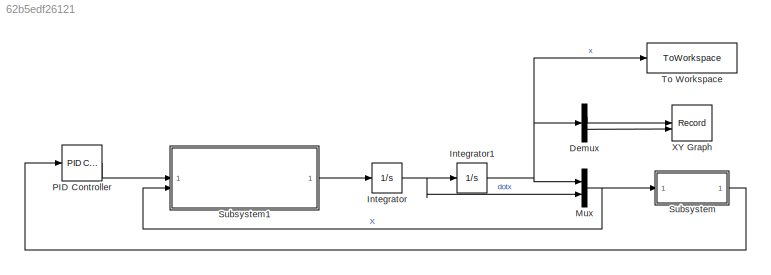
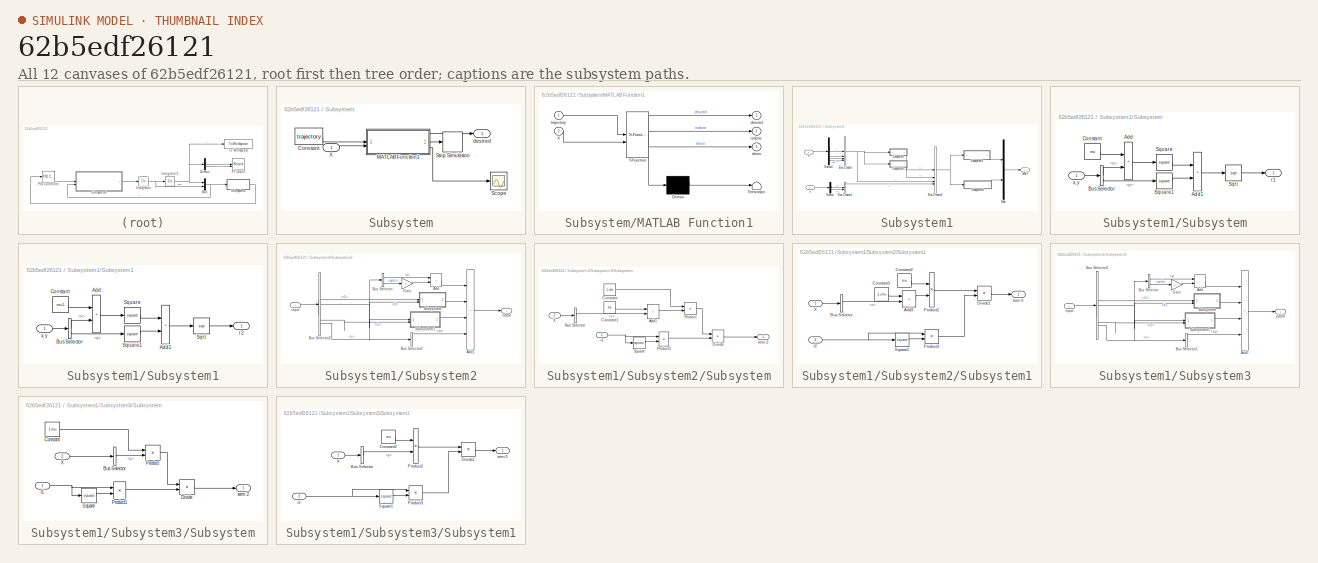
[diagram: thumbnail index - all 12 canvases of the model, root first then tree order]
MODEL slx_62b5edf26121
KIND model
CONFIG AbsTol = auto
CONFIG EnableMultiTasking = off
CONFIG FixedStep = 0.001
CONFIG MaxStep = auto
CONFIG MinStep = auto
CONFIG RelTol = 1e-3
CONFIG SampleTimeConstraint = Unconstrained
CONFIG SolverName = ode4
CONFIG StartTime = 0.0
CONFIG StopTime = 20
BLOCK [Demux] Demux
  Outputs = 2
BLOCK [Integrator] Integrator
  InitialCondition = dot_X0
BLOCK [Integrator] Integrator1
  InitialCondition = X0
BLOCK [Mux] Mux
  DisplayOption = bar
  Inputs = 2
BLOCK [Reference] PID Controller  REF=slpidlib/PID Controller
  LibrarySourceBlock = simulink/Continuous/PID Controller
  SourceBlock = slpidlib/PID Controller
  SourceType = PID 1dof
BLOCK [SubSystem] Subsystem
BLOCK [Constant] Subsystem/Constant
  Value = trajectory
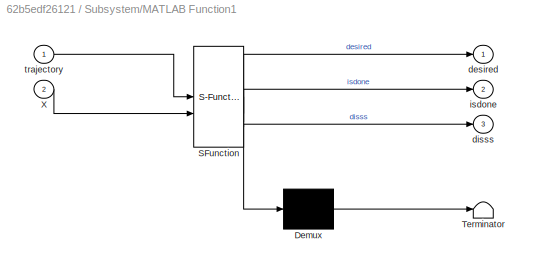
BLOCK [SubSystem] Subsystem/MATLAB Function1
  ErrorFcn = Stateflow.Translate.translate
  LibrarySourceBlock = simulink/User-Defined\nFunctions/MATLAB Function
  PermitHierarchicalResolution = ExplicitOnly
  SFBlockType = MATLAB Function
  TreatAsAtomicUnit = on
BLOCK [Demux] Subsystem/MATLAB Function1/ Demux 
  Outputs = 1
BLOCK [S-Function] Subsystem/MATLAB Function1/ SFunction 
  EnableBusSupport = on
  FunctionName = sf_sfun
  PortCounts = [2 4]
  SFcnIsStateOwnerBlock = off
  SFunctionDeploymentMode = off
  Tag = Stateflow S-Function 1
BLOCK [Terminator] Subsystem/MATLAB Function1/ Terminator 
BLOCK [Inport] Subsystem/MATLAB Function1/X
  Port = 2
BLOCK [Outport] Subsystem/MATLAB Function1/desired
BLOCK [Outport] Subsystem/MATLAB Function1/disss
  Port = 3
BLOCK [Outport] Subsystem/MATLAB Function1/isdone
  Port = 2
BLOCK [Inport] Subsystem/MATLAB Function1/trajectory
BLOCK [Scope] Subsystem/Scope
  Floating = off
  NumInputPorts = 1
  ScopeSpecificationString = Simulink.scopes.TimeScopeBlockCfg('CurrentConfiguration', extmgr.ConfigurationSet(extmgr.Configuration('Core','General UI',true),extmgr.Configuration('Core','Source UI',true),extmgr.Configuration('Sources','WiredSimulink',true),extmgr.Configuration('Visuals','Time Domain',true,'SerializedDisplays',{struct('MinYLimReal','0.00298','MaxYLimReal','0.00735','YLabelReal','','MinYLimMag','0.00298','MaxYL...<+1359ch>
BLOCK [Stop] Subsystem/Stop Simulation
BLOCK [Inport] Subsystem/X
BLOCK [Outport] Subsystem/desired
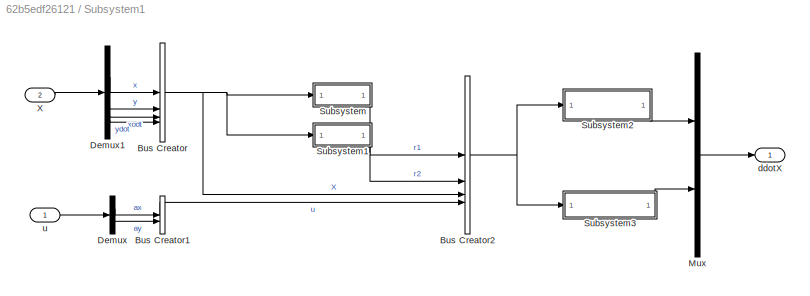
BLOCK [SubSystem] Subsystem1
BLOCK [BusCreator] Subsystem1/Bus Creator
  DisplayOption = bar
  InheritFromInputs = on
  Inputs = 4
BLOCK [BusCreator] Subsystem1/Bus Creator1
  DisplayOption = bar
  InheritFromInputs = on
  Inputs = 2
BLOCK [BusCreator] Subsystem1/Bus Creator2
  DisplayOption = bar
  InheritFromInputs = on
  Inputs = 4
BLOCK [Demux] Subsystem1/Demux
  Outputs = 2
BLOCK [Demux] Subsystem1/Demux1
BLOCK [Mux] Subsystem1/Mux
  DisplayOption = bar
  Inputs = 2
BLOCK [SubSystem] Subsystem1/Subsystem
BLOCK [Sum] Subsystem1/Subsystem/Add
  IconShape = rectangular
BLOCK [Sum] Subsystem1/Subsystem/Add1
  IconShape = rectangular
BLOCK [BusSelector] Subsystem1/Subsystem/Bus Selector
  OutputSignals = x,y
BLOCK [Constant] Subsystem1/Subsystem/Constant
  Value = mu
BLOCK [Sqrt] Subsystem1/Subsystem/Sqrt
BLOCK [Math] Subsystem1/Subsystem/Square
  Operator = square
BLOCK [Math] Subsystem1/Subsystem/Square1
  Operator = square
BLOCK [Outport] Subsystem1/Subsystem/r1
BLOCK [Inport] Subsystem1/Subsystem/x, y
BLOCK [SubSystem] Subsystem1/Subsystem1
BLOCK [Sum] Subsystem1/Subsystem1/Add
  IconShape = rectangular
BLOCK [Sum] Subsystem1/Subsystem1/Add1
  IconShape = rectangular
BLOCK [BusSelector] Subsystem1/Subsystem1/Bus Selector
  OutputSignals = x,y
BLOCK [Constant] Subsystem1/Subsystem1/Constant
  Value = mu-1
BLOCK [Sqrt] Subsystem1/Subsystem1/Sqrt
BLOCK [Math] Subsystem1/Subsystem1/Square
  Operator = square
BLOCK [Math] Subsystem1/Subsystem1/Square1
  Operator = square
BLOCK [Outport] Subsystem1/Subsystem1/r2
BLOCK [Inport] Subsystem1/Subsystem1/x, y
BLOCK [SubSystem] Subsystem1/Subsystem2
BLOCK [Sum] Subsystem1/Subsystem2/Add
  IconShape = rectangular
BLOCK [Sum] Subsystem1/Subsystem2/Add1
  IconShape = rectangular
  Inputs = +--+
BLOCK [BusSelector] Subsystem1/Subsystem2/Bus Selector
  OutputSignals = x,ydot
BLOCK [BusSelector] Subsystem1/Subsystem2/Bus Selector1
  OutputSignals = ax
BLOCK [BusSelector] Subsystem1/Subsystem2/Bus Selector2
  OutputSignals = X,r1,r2,u
BLOCK [Gain] Subsystem1/Subsystem2/Gain
  Gain = 2
BLOCK [SubSystem] Subsystem1/Subsystem2/Subsystem
BLOCK [Sum] Subsystem1/Subsystem2/Subsystem/Add1
  IconShape = rectangular
BLOCK [BusSelector] Subsystem1/Subsystem2/Subsystem/Bus Selector
  OutputSignals = x
BLOCK [Constant] Subsystem1/Subsystem2/Subsystem/Constant
  Value = 1-mu
BLOCK [Constant] Subsystem1/Subsystem2/Subsystem/Constant1
  Value = mu
BLOCK [Product] Subsystem1/Subsystem2/Subsystem/Divide
  Inputs = */
BLOCK [Product] Subsystem1/Subsystem2/Subsystem/Product
BLOCK [Product] Subsystem1/Subsystem2/Subsystem/Product1
BLOCK [Math] Subsystem1/Subsystem2/Subsystem/Square
  Operator = square
BLOCK [Inport] Subsystem1/Subsystem2/Subsystem/X
  Port = 2
BLOCK [Inport] Subsystem1/Subsystem2/Subsystem/r1
BLOCK [Outport] Subsystem1/Subsystem2/Subsystem/term 2
BLOCK [SubSystem] Subsystem1/Subsystem2/Subsystem1
BLOCK [Sum] Subsystem1/Subsystem2/Subsystem1/Add3
  IconShape = rectangular
BLOCK [BusSelector] Subsystem1/Subsystem2/Subsystem1/Bus Selector
  OutputSignals = x
BLOCK [Constant] Subsystem1/Subsystem2/Subsystem1/Constant2
  Value = mu
BLOCK [Constant] Subsystem1/Subsystem2/Subsystem1/Constant3
  Value = -1+mu
BLOCK [Product] Subsystem1/Subsystem2/Subsystem1/Divide1
  Inputs = */
BLOCK [Product] Subsystem1/Subsystem2/Subsystem1/Product2
BLOCK [Product] Subsystem1/Subsystem2/Subsystem1/Product3
BLOCK [Math] Subsystem1/Subsystem2/Subsystem1/Square1
  Operator = square
BLOCK [Inport] Subsystem1/Subsystem2/Subsystem1/X
BLOCK [Inport] Subsystem1/Subsystem2/Subsystem1/r2
  Port = 2
BLOCK [Outport] Subsystem1/Subsystem2/Subsystem1/term 3
BLOCK [Inport] Subsystem1/Subsystem2/input
BLOCK [Outport] Subsystem1/Subsystem2/xddot
BLOCK [SubSystem] Subsystem1/Subsystem3
BLOCK [Sum] Subsystem1/Subsystem3/Add
  IconShape = rectangular
BLOCK [Sum] Subsystem1/Subsystem3/Add1
  IconShape = rectangular
  Inputs = +--+
BLOCK [BusSelector] Subsystem1/Subsystem3/Bus Selector
  OutputSignals = y,xodt
BLOCK [BusSelector] Subsystem1/Subsystem3/Bus Selector1
  OutputSignals = ay
BLOCK [BusSelector] Subsystem1/Subsystem3/Bus Selector2
  OutputSignals = X,r1,r2,u
BLOCK [Gain] Subsystem1/Subsystem3/Gain
  Gain = -2
BLOCK [SubSystem] Subsystem1/Subsystem3/Subsystem
BLOCK [BusSelector] Subsystem1/Subsystem3/Subsystem/Bus Selector
  OutputSignals = y
BLOCK [Constant] Subsystem1/Subsystem3/Subsystem/Constant
  Value = 1-mu
BLOCK [Product] Subsystem1/Subsystem3/Subsystem/Divide
  Inputs = */
BLOCK [Product] Subsystem1/Subsystem3/Subsystem/Product
BLOCK [Product] Subsystem1/Subsystem3/Subsystem/Product1
BLOCK [Math] Subsystem1/Subsystem3/Subsystem/Square
  Operator = square
BLOCK [Inport] Subsystem1/Subsystem3/Subsystem/X
  Port = 2
BLOCK [Inport] Subsystem1/Subsystem3/Subsystem/r1
BLOCK [Outport] Subsystem1/Subsystem3/Subsystem/term 2
BLOCK [SubSystem] Subsystem1/Subsystem3/Subsystem1
BLOCK [BusSelector] Subsystem1/Subsystem3/Subsystem1/Bus Selector
  OutputSignals = y
BLOCK [Constant] Subsystem1/Subsystem3/Subsystem1/Constant2
  Value = mu
BLOCK [Product] Subsystem1/Subsystem3/Subsystem1/Divide1
  Inputs = */
BLOCK [Product] Subsystem1/Subsystem3/Subsystem1/Product2
BLOCK [Product] Subsystem1/Subsystem3/Subsystem1/Product3
BLOCK [Math] Subsystem1/Subsystem3/Subsystem1/Square1
  Operator = square
BLOCK [Inport] Subsystem1/Subsystem3/Subsystem1/X
BLOCK [Inport] Subsystem1/Subsystem3/Subsystem1/r2
  Port = 2
BLOCK [Outport] Subsystem1/Subsystem3/Subsystem1/term 3
BLOCK [Inport] Subsystem1/Subsystem3/input
BLOCK [Outport] Subsystem1/Subsystem3/yddot
BLOCK [Inport] Subsystem1/X
  Port = 2
BLOCK [Outport] Subsystem1/ddotX
BLOCK [Inport] Subsystem1/u
BLOCK [ToWorkspace] To Workspace
  FixptAsFi = on
  MaxDataPoints = inf
  SampleTime = -1
  Save2DSignal = 2-D array (concatenate along first dimension)
  VariableName = simout
BLOCK [Record] XY Graph
  CompatibilityTag = XY
  FileSettingsInternal = {"entries":[{"content":{"excelSettings":{"content":{},"type":"Streamout.ExcelSettings"}},"type":"Streamout.FileSettingStorage","uuid":""}],"packageUris":["http:\/\/schema.mathworks.com\/mf0\/streamout_blocks\/R2020a"],"version":"1.0"}
  Layout = [1 1]
  SignalsInternal = {"entries":[{"content":{"signals":[{"content":{"blockPath":[],"dimensions":[1],"domain":"","lineColor":"#a2142f","plots":[1],"port":1,"sid":[""],"signalID":10867,"signalName":"Demux:1"},"type":"RecordBlkView.Signal","uuid":""},{"content":{"blockPath":[],"dimensions":[1],"domain":"","lineColor":"#139fff","plots":[1],"port":2,"sid":[""],"signalID":10871,"signalName":"Demux:2"},"type":"RecordBlkView....<+164ch>
  VisualizationBindings = {"xyplotplugin":{"info":[{"series":[{"bindingParametersList":[{"parameter":"X-Axis","signalID":10867,"signalName":"Demux:1"},{"parameter":"Y-Axis","signalID":10871,"signalName":"Demux:2"}],"seriesID":19812}],"subplotID":1}]}}
LINE Demux:1 -> XY Graph:1
LINE Demux:2 -> XY Graph:2
NET Integrator1:1 -> Demux:1, Mux:1, To Workspace:1
NET Integrator:1 -> Integrator1:1, Mux:2
NET Mux:1 -> Subsystem1:2, Subsystem:1
LINE PID Controller:1 -> Subsystem1:1
LINE Subsystem/Constant:1 -> Subsystem/MATLAB Function1:1
LINE Subsystem/MATLAB Function1:1 -> Subsystem/desired:1
LINE Subsystem/MATLAB Function1:2 -> Subsystem/Stop Simulation:1
LINE Subsystem/MATLAB Function1:3 -> Subsystem/Scope:1
LINE Subsystem/X:1 -> Subsystem/MATLAB Function1:2
LINE Subsystem1/Bus Creator1:1 -> Subsystem1/Bus Creator2:4
NET Subsystem1/Bus Creator2:1 -> Subsystem1/Subsystem2:1, Subsystem1/Subsystem3:1
NET Subsystem1/Bus Creator:1 -> Subsystem1/Bus Creator2:3, Subsystem1/Subsystem1:1, Subsystem1/Subsystem:1
LINE Subsystem1/Demux1:1 -> Subsystem1/Bus Creator:1
LINE Subsystem1/Demux1:2 -> Subsystem1/Bus Creator:2
LINE Subsystem1/Demux1:3 -> Subsystem1/Bus Creator:3
LINE Subsystem1/Demux1:4 -> Subsystem1/Bus Creator:4
LINE Subsystem1/Demux:1 -> Subsystem1/Bus Creator1:1
LINE Subsystem1/Demux:2 -> Subsystem1/Bus Creator1:2
LINE Subsystem1/Mux:1 -> Subsystem1/ddotX:1
LINE Subsystem1/Subsystem/Add1:1 -> Subsystem1/Subsystem/Sqrt:1
LINE Subsystem1/Subsystem/Add:1 -> Subsystem1/Subsystem/Square:1
LINE Subsystem1/Subsystem/Bus Selector:1 -> Subsystem1/Subsystem/Add:2
LINE Subsystem1/Subsystem/Bus Selector:2 -> Subsystem1/Subsystem/Square1:1
LINE Subsystem1/Subsystem/Constant:1 -> Subsystem1/Subsystem/Add:1
LINE Subsystem1/Subsystem/Sqrt:1 -> Subsystem1/Subsystem/r1:1
LINE Subsystem1/Subsystem/Square1:1 -> Subsystem1/Subsystem/Add1:2
LINE Subsystem1/Subsystem/Square:1 -> Subsystem1/Subsystem/Add1:1
LINE Subsystem1/Subsystem/x, y:1 -> Subsystem1/Subsystem/Bus Selector:1
LINE Subsystem1/Subsystem1/Add1:1 -> Subsystem1/Subsystem1/Sqrt:1
LINE Subsystem1/Subsystem1/Add:1 -> Subsystem1/Subsystem1/Square:1
LINE Subsystem1/Subsystem1/Bus Selector:1 -> Subsystem1/Subsystem1/Add:2
LINE Subsystem1/Subsystem1/Bus Selector:2 -> Subsystem1/Subsystem1/Square1:1
LINE Subsystem1/Subsystem1/Constant:1 -> Subsystem1/Subsystem1/Add:1
LINE Subsystem1/Subsystem1/Sqrt:1 -> Subsystem1/Subsystem1/r2:1
LINE Subsystem1/Subsystem1/Square1:1 -> Subsystem1/Subsystem1/Add1:2
LINE Subsystem1/Subsystem1/Square:1 -> Subsystem1/Subsystem1/Add1:1
LINE Subsystem1/Subsystem1/x, y:1 -> Subsystem1/Subsystem1/Bus Selector:1
LINE Subsystem1/Subsystem1:1 -> Subsystem1/Bus Creator2:2
LINE Subsystem1/Subsystem2/Add1:1 -> Subsystem1/Subsystem2/xddot:1
LINE Subsystem1/Subsystem2/Add:1 -> Subsystem1/Subsystem2/Add1:1
LINE Subsystem1/Subsystem2/Bus Selector1:1 -> Subsystem1/Subsystem2/Add1:4
NET Subsystem1/Subsystem2/Bus Selector2:1 -> Subsystem1/Subsystem2/Bus Selector:1, Subsystem1/Subsystem2/Subsystem1:1, Subsystem1/Subsystem2/Subsystem:2
LINE Subsystem1/Subsystem2/Bus Selector2:2 -> Subsystem1/Subsystem2/Subsystem:1
LINE Subsystem1/Subsystem2/Bus Selector2:3 -> Subsystem1/Subsystem2/Subsystem1:2
LINE Subsystem1/Subsystem2/Bus Selector2:4 -> Subsystem1/Subsystem2/Bus Selector1:1
LINE Subsystem1/Subsystem2/Bus Selector:1 -> Subsystem1/Subsystem2/Add:1
LINE Subsystem1/Subsystem2/Bus Selector:2 -> Subsystem1/Subsystem2/Gain:1
LINE Subsystem1/Subsystem2/Gain:1 -> Subsystem1/Subsystem2/Add:2
LINE Subsystem1/Subsystem2/Subsystem/Add1:1 -> Subsystem1/Subsystem2/Subsystem/Product:2
LINE Subsystem1/Subsystem2/Subsystem/Bus Selector:1 -> Subsystem1/Subsystem2/Subsystem/Add1:2
LINE Subsystem1/Subsystem2/Subsystem/Constant1:1 -> Subsystem1/Subsystem2/Subsystem/Add1:1
LINE Subsystem1/Subsystem2/Subsystem/Constant:1 -> Subsystem1/Subsystem2/Subsystem/Product:1
LINE Subsystem1/Subsystem2/Subsystem/Divide:1 -> Subsystem1/Subsystem2/Subsystem/term 2:1
LINE Subsystem1/Subsystem2/Subsystem/Product1:1 -> Subsystem1/Subsystem2/Subsystem/Divide:2
LINE Subsystem1/Subsystem2/Subsystem/Product:1 -> Subsystem1/Subsystem2/Subsystem/Divide:1
LINE Subsystem1/Subsystem2/Subsystem/Square:1 -> Subsystem1/Subsystem2/Subsystem/Product1:2
LINE Subsystem1/Subsystem2/Subsystem/X:1 -> Subsystem1/Subsystem2/Subsystem/Bus Selector:1
NET Subsystem1/Subsystem2/Subsystem/r1:1 -> Subsystem1/Subsystem2/Subsystem/Product1:1, Subsystem1/Subsystem2/Subsystem/Square:1
LINE Subsystem1/Subsystem2/Subsystem1/Add3:1 -> Subsystem1/Subsystem2/Subsystem1/Product2:2
LINE Subsystem1/Subsystem2/Subsystem1/Bus Selector:1 -> Subsystem1/Subsystem2/Subsystem1/Add3:2
LINE Subsystem1/Subsystem2/Subsystem1/Constant2:1 -> Subsystem1/Subsystem2/Subsystem1/Product2:1
LINE Subsystem1/Subsystem2/Subsystem1/Constant3:1 -> Subsystem1/Subsystem2/Subsystem1/Add3:1
LINE Subsystem1/Subsystem2/Subsystem1/Divide1:1 -> Subsystem1/Subsystem2/Subsystem1/term 3:1
LINE Subsystem1/Subsystem2/Subsystem1/Product2:1 -> Subsystem1/Subsystem2/Subsystem1/Divide1:1
LINE Subsystem1/Subsystem2/Subsystem1/Product3:1 -> Subsystem1/Subsystem2/Subsystem1/Divide1:2
LINE Subsystem1/Subsystem2/Subsystem1/Square1:1 -> Subsystem1/Subsystem2/Subsystem1/Product3:2
LINE Subsystem1/Subsystem2/Subsystem1/X:1 -> Subsystem1/Subsystem2/Subsystem1/Bus Selector:1
NET Subsystem1/Subsystem2/Subsystem1/r2:1 -> Subsystem1/Subsystem2/Subsystem1/Product3:1, Subsystem1/Subsystem2/Subsystem1/Square1:1
LINE Subsystem1/Subsystem2/Subsystem1:1 -> Subsystem1/Subsystem2/Add1:3
LINE Subsystem1/Subsystem2/Subsystem:1 -> Subsystem1/Subsystem2/Add1:2
LINE Subsystem1/Subsystem2/input:1 -> Subsystem1/Subsystem2/Bus Selector2:1
LINE Subsystem1/Subsystem2:1 -> Subsystem1/Mux:1
LINE Subsystem1/Subsystem3/Add1:1 -> Subsystem1/Subsystem3/yddot:1
LINE Subsystem1/Subsystem3/Add:1 -> Subsystem1/Subsystem3/Add1:1
LINE Subsystem1/Subsystem3/Bus Selector1:1 -> Subsystem1/Subsystem3/Add1:4
NET Subsystem1/Subsystem3/Bus Selector2:1 -> Subsystem1/Subsystem3/Bus Selector:1, Subsystem1/Subsystem3/Subsystem1:1, Subsystem1/Subsystem3/Subsystem:2
LINE Subsystem1/Subsystem3/Bus Selector2:2 -> Subsystem1/Subsystem3/Subsystem:1
LINE Subsystem1/Subsystem3/Bus Selector2:3 -> Subsystem1/Subsystem3/Subsystem1:2
LINE Subsystem1/Subsystem3/Bus Selector2:4 -> Subsystem1/Subsystem3/Bus Selector1:1
LINE Subsystem1/Subsystem3/Bus Selector:1 -> Subsystem1/Subsystem3/Add:1
LINE Subsystem1/Subsystem3/Bus Selector:2 -> Subsystem1/Subsystem3/Gain:1
LINE Subsystem1/Subsystem3/Gain:1 -> Subsystem1/Subsystem3/Add:2
LINE Subsystem1/Subsystem3/Subsystem/Bus Selector:1 -> Subsystem1/Subsystem3/Subsystem/Product:2
LINE Subsystem1/Subsystem3/Subsystem/Constant:1 -> Subsystem1/Subsystem3/Subsystem/Product:1
LINE Subsystem1/Subsystem3/Subsystem/Divide:1 -> Subsystem1/Subsystem3/Subsystem/term 2:1
LINE Subsystem1/Subsystem3/Subsystem/Product1:1 -> Subsystem1/Subsystem3/Subsystem/Divide:2
LINE Subsystem1/Subsystem3/Subsystem/Product:1 -> Subsystem1/Subsystem3/Subsystem/Divide:1
LINE Subsystem1/Subsystem3/Subsystem/Square:1 -> Subsystem1/Subsystem3/Subsystem/Product1:2
LINE Subsystem1/Subsystem3/Subsystem/X:1 -> Subsystem1/Subsystem3/Subsystem/Bus Selector:1
NET Subsystem1/Subsystem3/Subsystem/r1:1 -> Subsystem1/Subsystem3/Subsystem/Product1:1, Subsystem1/Subsystem3/Subsystem/Square:1
LINE Subsystem1/Subsystem3/Subsystem1/Bus Selector:1 -> Subsystem1/Subsystem3/Subsystem1/Product2:2
LINE Subsystem1/Subsystem3/Subsystem1/Constant2:1 -> Subsystem1/Subsystem3/Subsystem1/Product2:1
LINE Subsystem1/Subsystem3/Subsystem1/Divide1:1 -> Subsystem1/Subsystem3/Subsystem1/term 3:1
LINE Subsystem1/Subsystem3/Subsystem1/Product2:1 -> Subsystem1/Subsystem3/Subsystem1/Divide1:1
LINE Subsystem1/Subsystem3/Subsystem1/Product3:1 -> Subsystem1/Subsystem3/Subsystem1/Divide1:2
LINE Subsystem1/Subsystem3/Subsystem1/Square1:1 -> Subsystem1/Subsystem3/Subsystem1/Product3:2
LINE Subsystem1/Subsystem3/Subsystem1/X:1 -> Subsystem1/Subsystem3/Subsystem1/Bus Selector:1
NET Subsystem1/Subsystem3/Subsystem1/r2:1 -> Subsystem1/Subsystem3/Subsystem1/Product3:1, Subsystem1/Subsystem3/Subsystem1/Square1:1
LINE Subsystem1/Subsystem3/Subsystem1:1 -> Subsystem1/Subsystem3/Add1:3
LINE Subsystem1/Subsystem3/Subsystem:1 -> Subsystem1/Subsystem3/Add1:2
LINE Subsystem1/Subsystem3/input:1 -> Subsystem1/Subsystem3/Bus Selector2:1
LINE Subsystem1/Subsystem3:1 -> Subsystem1/Mux:2
LINE Subsystem1/Subsystem:1 -> Subsystem1/Bus Creator2:1
LINE Subsystem1/X:1 -> Subsystem1/Demux1:1
LINE Subsystem1/u:1 -> Subsystem1/Demux:1
LINE Subsystem1:1 -> Integrator:1
LINE Subsystem:1 -> PID Controller:1
note: NET lines group one-source signal fan-out (src -> all destinations, sorted); 1:1 wires keep LINE
CHART Subsystem/MATLAB Function1 states=1 transitions=1
  STATE_LABEL 'eML_blk_kernel()'
  STATE_LABEL "SCRIPT:\nfunction [desired, isdone, disss] = fcn(trajectory, X)\n\npersistent point_index\nif isempty(point_index)\n    point_index = 0;\nend\n\ntrajectory = trajectory(:, 1:2)';\nxy = X(1:2);\ndistance = ((trajectory - xy).^2);\ndist = sum(distance);\ndist = dist';\nindex = find(dist==min(dist));\nindex = index(1);\nif index <= point_index && index < length(trajectory)\n    index = point_index + 1;\nend\npoint_ind...<+332ch>"
CHART  states=0 transitions=0
